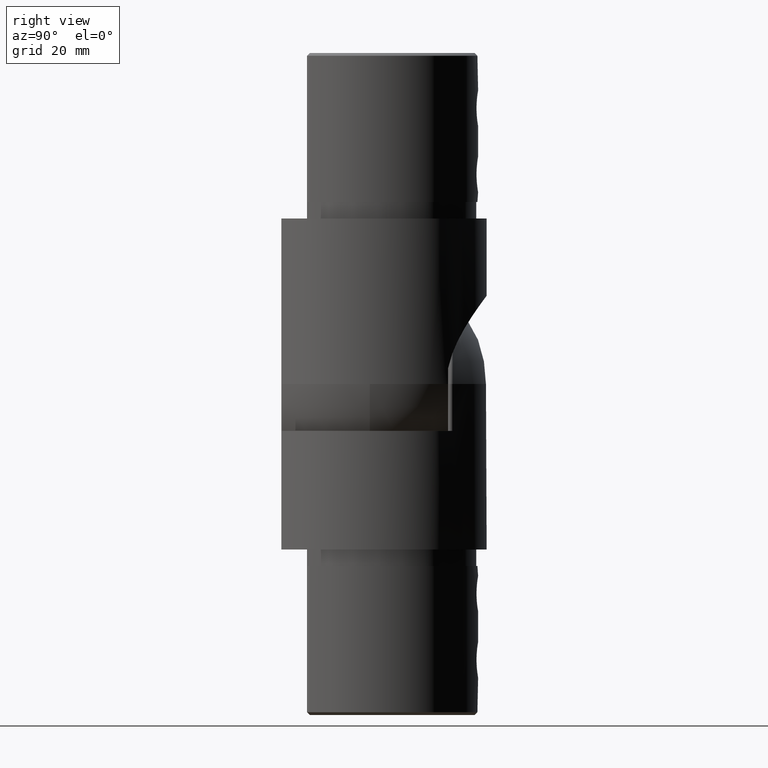
[diagram: clean part render]
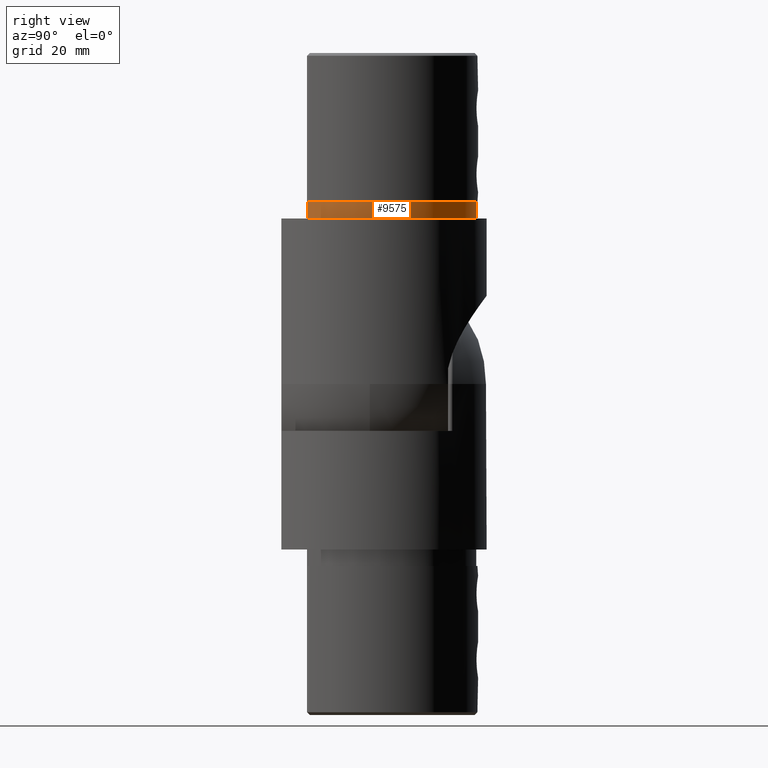
[diagram: same view with one face highlighted and labeled with its STEP entity id]
A machine part, right view. The second image highlights one B-rep face of the part: STEP entity #9575.
In plain terms, the highlighted cylindrical surface (partial cylindrical patch) has radius 19.45 mm, axis along (-0, -0, -1).
Its self-contained STEP definition (entity closure, byte-faithful):
#196 = CIRCLE ( 'NONE', #8173, 19.44999999999999600 ) ;
#1045 = ORIENTED_EDGE ( 'NONE', *, *, #4154, .T. ) ;
#2636 = VERTEX_POINT ( 'NONE', #18395 ) ;
#2732 = CYLINDRICAL_SURFACE ( 'NONE', #8515, 19.44999999999999600 ) ;
#3287 = DIRECTION ( 'NONE',  ( -1.000000000000000000, 0.0000000000000000000, 0.0000000000000000000 ) ) ;
#3448 = DIRECTION ( 'NONE',  ( 0.0000000000000000000, 0.0000000000000000000, 1.000000000000000000 ) ) ;
#3562 = CARTESIAN_POINT ( 'NONE',  ( 15.81614436302432300, -11.32042744281211800, 2.999999999999999100 ) ) ;
#4044 = EDGE_CURVE ( 'NONE', #8971, #2636, #9667, .T. ) ;
#4154 = EDGE_CURVE ( 'NONE', #2636, #17393, #22763, .T. ) ;
#4948 = EDGE_CURVE ( 'NONE', #17393, #19850, #5652, .T. ) ;
#5652 = LINE ( 'NONE', #18947, #11707 ) ;
#6180 = EDGE_CURVE ( 'NONE', #8971, #19850, #196, .T. ) ;
#6887 = CARTESIAN_POINT ( 'NONE',  ( -15.81614436302430900, -11.32042744281214100, 4.336808689942017700E-016 ) ) ;
#6955 = DIRECTION ( 'NONE',  ( -0.0000000000000000000, -0.0000000000000000000, -1.000000000000000000 ) ) ;
#7791 = ORIENTED_EDGE ( 'NONE', *, *, #4948, .T. ) ;
#8073 = CARTESIAN_POINT ( 'NONE',  ( 0.0000000000000000000, 0.0000000000000000000, 4.336808689942017700E-016 ) ) ;
#8173 = AXIS2_PLACEMENT_3D ( 'NONE', #8073, #19242, #12047 ) ;
#8270 = EDGE_LOOP ( 'NONE', ( #7791, #10823, #15947, #1045 ) ) ;
#8515 = AXIS2_PLACEMENT_3D ( 'NONE', #20901, #15071, #18790 ) ;
#8815 = VECTOR ( 'NONE', #3448, 1000.000000000000000 ) ;
#8971 = VERTEX_POINT ( 'NONE', #6887 ) ;
#9575 = ADVANCED_FACE ( 'NONE', ( #19001 ), #2732, .T. ) ;
#9667 = LINE ( 'NONE', #23951, #8815 ) ;
#10532 = CARTESIAN_POINT ( 'NONE',  ( 15.81614436302431600, -11.32042744281212900, 4.336808689942017700E-016 ) ) ;
#10823 = ORIENTED_EDGE ( 'NONE', *, *, #6180, .F. ) ;
#11707 = VECTOR ( 'NONE', #23827, 1000.000000000000000 ) ;
#12047 = DIRECTION ( 'NONE',  ( -1.000000000000000000, 0.0000000000000000000, 0.0000000000000000000 ) ) ;
#13289 = AXIS2_PLACEMENT_3D ( 'NONE', #23792, #6955, #3287 ) ;
#15071 = DIRECTION ( 'NONE',  ( -0.0000000000000000000, -0.0000000000000000000, -1.000000000000000000 ) ) ;
#15947 = ORIENTED_EDGE ( 'NONE', *, *, #4044, .T. ) ;
#17393 = VERTEX_POINT ( 'NONE', #3562 ) ;
#18395 = CARTESIAN_POINT ( 'NONE',  ( -15.81614436302431900, -11.32042744281212300, 2.999999999999999100 ) ) ;
#18790 = DIRECTION ( 'NONE',  ( -1.000000000000000000, 0.0000000000000000000, 0.0000000000000000000 ) ) ;
#18947 = CARTESIAN_POINT ( 'NONE',  ( 15.81614436302431600, -11.32042744281213200, 1.500000000000000400 ) ) ;
#19001 = FACE_OUTER_BOUND ( 'NONE', #8270, .T. ) ;
#19242 = DIRECTION ( 'NONE',  ( -0.0000000000000000000, -0.0000000000000000000, -1.000000000000000000 ) ) ;
#19850 = VERTEX_POINT ( 'NONE', #10532 ) ;
#20901 = CARTESIAN_POINT ( 'NONE',  ( 0.0000000000000000000, 0.0000000000000000000, 0.0000000000000000000 ) ) ;
#22763 = CIRCLE ( 'NONE', #13289, 19.44999999999999600 ) ;
#23792 = CARTESIAN_POINT ( 'NONE',  ( 0.0000000000000000000, 0.0000000000000000000, 3.000000000000000400 ) ) ;
#23827 = DIRECTION ( 'NONE',  ( -0.0000000000000000000, -0.0000000000000000000, -1.000000000000000000 ) ) ;
#23951 = CARTESIAN_POINT ( 'NONE',  ( -15.81614436302431200, -11.32042744281213800, 1.500000000000000400 ) ) ;